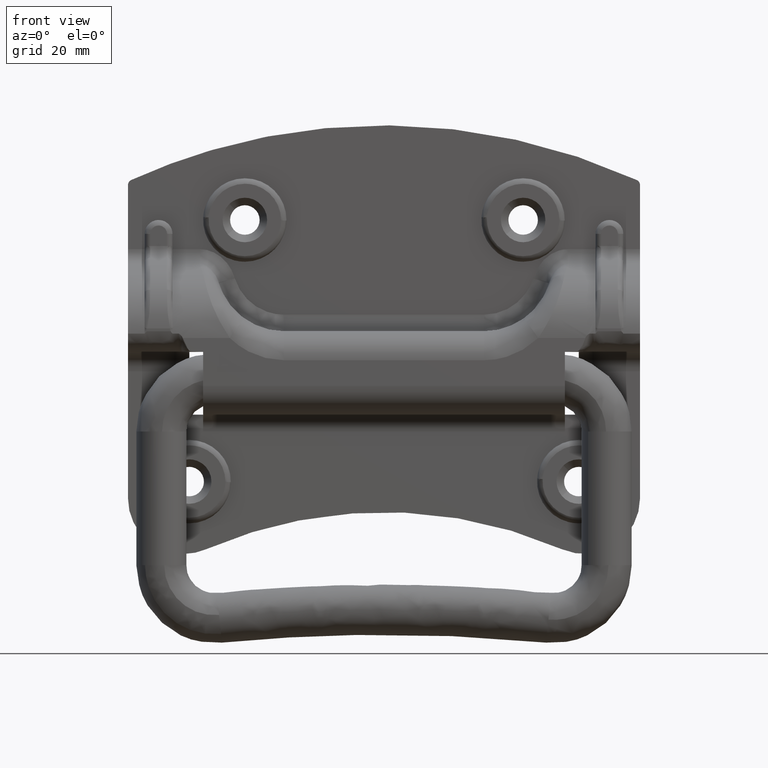
[diagram: clean part render]
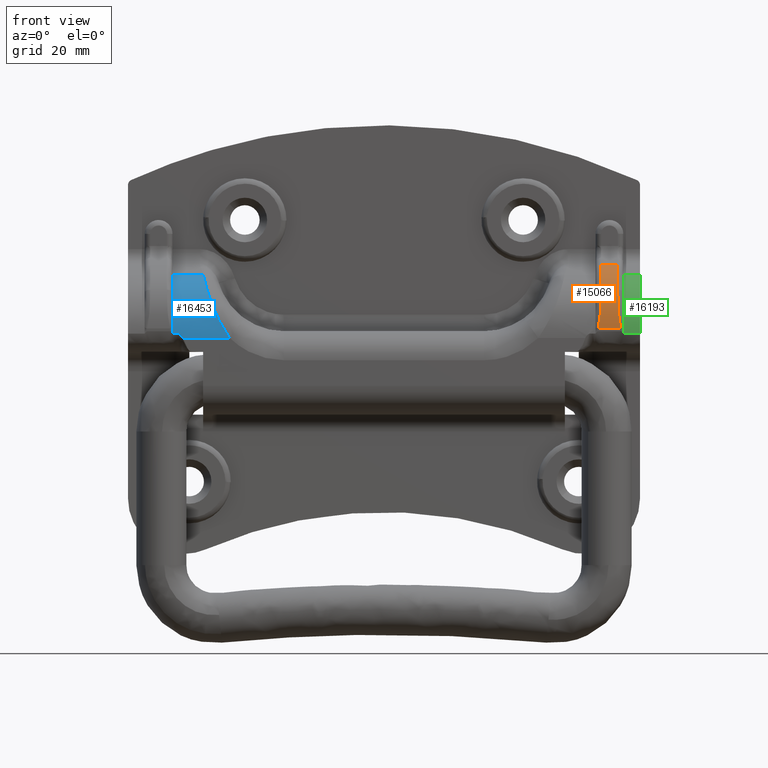
[diagram: same view with three faces highlighted in distinct colors, each labeled with its STEP entity id]
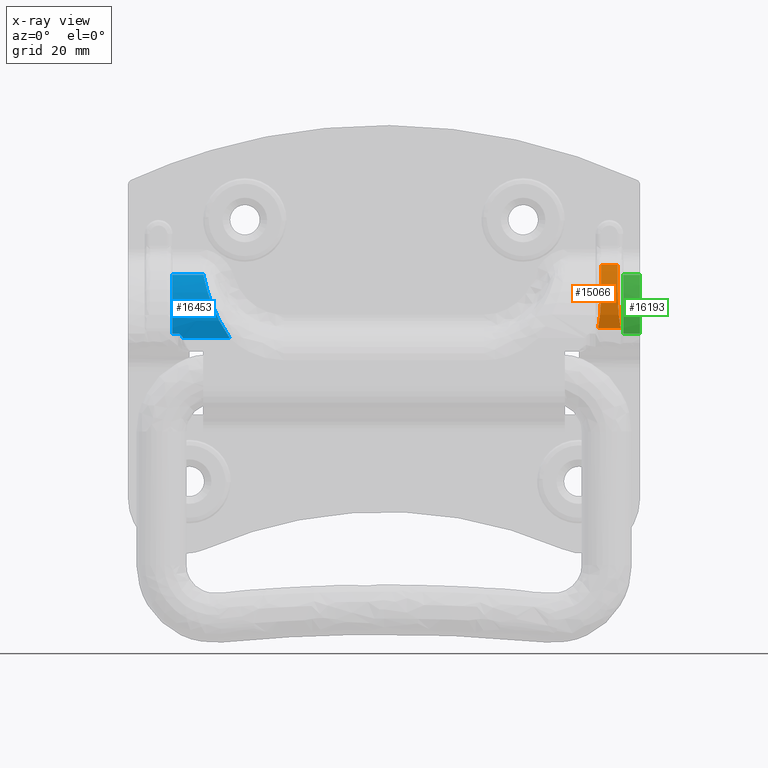
[diagram: x-ray of the same camera — body ghosted, the three highlighted faces saturated]
A machine part, front view with three faces highlighted in distinct colors.
The next image is the same camera in x-ray (body ghosted, the three faces saturated) — at least one of them is partly hidden behind the body in this view.
Their STEP definitions:

[orange] entity #15066 — the highlighted face is a freeform B-spline surface patch.
#5805=CARTESIAN_POINT('',(39.0,0.430225171060021,20.403448383051149));
#5806=VERTEX_POINT('',#5805);
#5844=CARTESIAN_POINT('',(39.0,-4.276323901076710,15.980952418736701));
#5845=VERTEX_POINT('',#5844);
#5856=CARTESIAN_POINT('',(39.0,0.430225171060021,20.403448383051149));
#5857=CARTESIAN_POINT('',(38.999999999999972,-0.314288488159473,19.993668176368629));
#5858=CARTESIAN_POINT('',(39.000000000000078,-1.468952343553884,19.201266422286292));
#5859=CARTESIAN_POINT('',(39.000000000000021,-3.045758807795529,17.696131232335400));
#5860=CARTESIAN_POINT('',(39.000000000000007,-3.857462239993519,16.641132511640219));
#5861=CARTESIAN_POINT('',(39.0,-4.276323901076710,15.980952418736701));
#5862=B_SPLINE_CURVE_WITH_KNOTS('',3,(#5856,#5857,#5858,#5859,#5860,#5861),.UNSPECIFIED.,.F.,.U.,(4,1,1,4),(0.000000012528008,2.549486902398912,4.181152243183659,6.526679813057839),.UNSPECIFIED.);
#5863=EDGE_CURVE('',#5806,#5845,#5862,.T.);
#5957=CARTESIAN_POINT('',(38.478605971033247,-6.300000000000000,9.015300000000000));
#5958=VERTEX_POINT('',#5957);
#5966=CARTESIAN_POINT('',(39.0,-4.276323901076710,15.980952418736701));
#5967=CARTESIAN_POINT('',(39.000000000000007,-4.607893594419021,15.458472092254100));
#5968=CARTESIAN_POINT('',(38.994012625306382,-4.898384695253560,14.918644573939410));
#5969=CARTESIAN_POINT('',(38.966144563768800,-5.400154437317543,13.806778612163111));
#5970=CARTESIAN_POINT('',(38.944401135558003,-5.611514559957753,13.234583813940141));
#5971=CARTESIAN_POINT('',(38.902465583903407,-5.825509652215792,12.498845911662890));
#5972=CARTESIAN_POINT('',(38.893323538750820,-5.865786867880731,12.350669355010799));
#5973=CARTESIAN_POINT('',(38.873312497469911,-5.941230165062311,12.052237315333910));
#5974=CARTESIAN_POINT('',(38.862427971717167,-5.976432131013283,11.901792753116339));
#5975=CARTESIAN_POINT('',(38.826948239830031,-6.073771659365329,11.449605966453611));
#5976=CARTESIAN_POINT('',(38.799573086825013,-6.127801176814277,11.146528084316710));
#5977=CARTESIAN_POINT('',(38.750599391539417,-6.192633809895230,10.689709594084100));
#5978=CARTESIAN_POINT('',(38.732940184244619,-6.211536274946944,10.537067478798830));
#5979=CARTESIAN_POINT('',(38.694378535665827,-6.243858226321066,10.231885161713310));
#5980=CARTESIAN_POINT('',(38.673475782526197,-6.257291889825059,10.079250411784320));
#5981=CARTESIAN_POINT('',(38.627370684307500,-6.278741060247416,9.774038484532019));
#5982=CARTESIAN_POINT('',(38.602195071725482,-6.286749137477676,9.621502489241221));
#5983=CARTESIAN_POINT('',(38.545823022484420,-6.297377340400757,9.317486844479273));
#5984=CARTESIAN_POINT('',(38.514676662237832,-6.300000000000003,9.165830803368374));
#5985=CARTESIAN_POINT('',(38.478605971033247,-6.300000000000000,9.015300000000000));
#5986=B_SPLINE_CURVE_WITH_KNOTS('',3,(#5966,#5967,#5968,#5969,#5970,#5971,#5972,#5973,#5974,#5975,#5976,#5977,#5978,#5979,#5980,#5981,#5982,#5983,#5984,#5985),.UNSPECIFIED.,.F.,.U.,(4,2,2,2,2,2,2,2,2,4),(0.0,0.249999999999999,0.499999999999997,0.562499999999997,0.624999999999997,0.749999999999998,0.812499999999999,0.874999999999999,0.937500000000000,1.0),.UNSPECIFIED.);
#5987=EDGE_CURVE('',#5845,#5958,#5986,.T.);
#6069=CARTESIAN_POINT('',(42.0,0.430225171060021,20.403448383051149));
#6070=VERTEX_POINT('',#6069);
#6113=CARTESIAN_POINT('',(42.0,-4.276323901076710,15.980952418736701));
#6114=VERTEX_POINT('',#6113);
#6136=CARTESIAN_POINT('',(42.0,-4.276323901076710,15.980952418736701));
#6137=CARTESIAN_POINT('',(42.000000000000057,-3.821050595371696,16.698550575103649));
#6138=CARTESIAN_POINT('',(42.000000000000121,-3.021517344678332,17.720989859111601));
#6139=CARTESIAN_POINT('',(41.999999999999403,-1.439843604840987,19.218902979387089));
#6140=CARTESIAN_POINT('',(42.000000000000831,-0.344090882757600,19.977297594778669));
#6141=CARTESIAN_POINT('',(42.0,0.430225171060021,20.403448383051149));
#6142=B_SPLINE_CURVE_WITH_KNOTS('',3,(#6136,#6137,#6138,#6139,#6140,#6141),.UNSPECIFIED.,.F.,.U.,(4,1,1,4),(0.000000012527669,2.549486902398936,3.875204620997911,6.526679813057847),.UNSPECIFIED.);
#6143=EDGE_CURVE('',#6114,#6070,#6142,.T.);
#6226=CARTESIAN_POINT('',(42.521394028966803,-6.300000000000000,9.015300000000000));
#6227=VERTEX_POINT('',#6226);
#6246=CARTESIAN_POINT('',(42.521394028966803,-6.300000000000000,9.015300000000000));
#6247=CARTESIAN_POINT('',(42.485320224847207,-6.300000000000002,9.165843794236613));
#6248=CARTESIAN_POINT('',(42.454171581058219,-6.297376886950559,9.317513001943949));
#6249=CARTESIAN_POINT('',(42.397795730078663,-6.286746839153366,9.621555041810437));
#6250=CARTESIAN_POINT('',(42.372618617771330,-6.278737367673204,9.774104323215893));
#6251=CARTESIAN_POINT('',(42.326511042453809,-6.257284475483322,10.079342612570930));
#6252=CARTESIAN_POINT('',(42.305607301962517,-6.243848480685903,10.231990532211690));
#6253=CARTESIAN_POINT('',(42.267044027817498,-6.211520914909700,10.537199144482869));
#6254=CARTESIAN_POINT('',(42.249384184400853,-6.192615161215256,10.689854399365389));
#6255=CARTESIAN_POINT('',(42.200409045342489,-6.127771330288906,11.146711556772640));
#6256=CARTESIAN_POINT('',(42.173033460901692,-6.073732486651917,11.449814929751691));
#6257=CARTESIAN_POINT('',(42.137553621829511,-5.976376110129258,11.902039486077131));
#6258=CARTESIAN_POINT('',(42.126669165792507,-5.941168005449564,12.052496557445840));
#6259=CARTESIAN_POINT('',(42.106658820160192,-5.865713375537659,12.350946689083910));
#6260=CARTESIAN_POINT('',(42.097517322825482,-5.825430755771898,12.499129820558780));
#6261=CARTESIAN_POINT('',(42.055585121569059,-5.611411071155761,13.234888939345000));
#6262=CARTESIAN_POINT('',(42.033846142120012,-5.400039060802506,13.807063625513541));
#6263=CARTESIAN_POINT('',(42.005984908226530,-4.898288298384833,14.918828814471100));
#6264=CARTESIAN_POINT('',(42.000000000000007,-4.607921110633572,15.458428732800410));
#6265=CARTESIAN_POINT('',(42.0,-4.276323901076710,15.980952418736701));
#6266=B_SPLINE_CURVE_WITH_KNOTS('',3,(#6246,#6247,#6248,#6249,#6250,#6251,#6252,#6253,#6254,#6255,#6256,#6257,#6258,#6259,#6260,#6261,#6262,#6263,#6264,#6265),.UNSPECIFIED.,.F.,.U.,(4,2,2,2,2,2,2,2,2,4),(0.0,0.062500000000000,0.124999999999999,0.187499999999999,0.249999999999999,0.374999999999998,0.437499999999998,0.499999999999998,0.749999999999999,1.0),.UNSPECIFIED.);
#6267=EDGE_CURVE('',#6227,#6114,#6266,.T.);
#15036=CARTESIAN_POINT('',(42.622463730415127,0.899428429572494,20.649446700826321));
#15037=CARTESIAN_POINT('',(38.375009527048697,0.899428429572494,20.649446700826321));
#15038=CARTESIAN_POINT('',(42.622463730415141,-6.714769278768177,16.853147763365087));
#15039=CARTESIAN_POINT('',(38.375009527048697,-6.714769278768177,16.853147763365087));
#15040=CARTESIAN_POINT('',(42.622463730415127,-6.283270368841176,8.355989352755014));
#15041=CARTESIAN_POINT('',(38.375009527048704,-6.283270368841176,8.355989352755014));
#15049=(BOUNDED_SURFACE()B_SPLINE_SURFACE(1,2,((#15036,#15038,#15040),(#15037,#15039,#15041)),.UNSPECIFIED.,.F.,.F.,.U.)B_SPLINE_SURFACE_WITH_KNOTS((2,2),(3,3),(0.0,4.247454203366438),(0.0,15.503547872285020),.UNSPECIFIED.)GEOMETRIC_REPRESENTATION_ITEM()RATIONAL_B_SPLINE_SURFACE(((1.0,0.833269797135400,0.991745090738385),(1.0,0.833269797135400,0.991745090738385)))REPRESENTATION_ITEM('')SURFACE());
#15050=CARTESIAN_POINT('',(42.0,0.430225171060021,20.403448383051149));
#15051=CARTESIAN_POINT('',(39.0,0.430225171060021,20.403448383051149));
#15052=QUASI_UNIFORM_CURVE('',1,(#15050,#15051),.UNSPECIFIED.,.F.,.U.);
#15053=EDGE_CURVE('',#6070,#5806,#15052,.T.);
#15054=ORIENTED_EDGE('',*,*,#15053,.T.);
#15055=ORIENTED_EDGE('',*,*,#5863,.T.);
#15056=ORIENTED_EDGE('',*,*,#5987,.T.);
#15057=CARTESIAN_POINT('',(42.521394028966803,-6.300000000000000,9.015300000000000));
#15058=CARTESIAN_POINT('',(38.478605971033247,-6.300000000000000,9.015300000000000));
#15059=QUASI_UNIFORM_CURVE('',1,(#15057,#15058),.UNSPECIFIED.,.F.,.U.);
#15060=EDGE_CURVE('',#6227,#5958,#15059,.T.);
#15061=ORIENTED_EDGE('',*,*,#15060,.F.);
#15062=ORIENTED_EDGE('',*,*,#6267,.T.);
#15063=ORIENTED_EDGE('',*,*,#6143,.T.);
#15064=EDGE_LOOP('',(#15054,#15055,#15056,#15061,#15062,#15063));
#15065=FACE_OUTER_BOUND('',#15064,.T.);
#15066=ADVANCED_FACE('',(#15065),#15049,.T.);

[blue] entity #16453 — the highlighted face is a freeform B-spline surface patch.
#6385=CARTESIAN_POINT('',(-38.000500000000002,-3.431991293301565,15.445133001910801));
#6386=VERTEX_POINT('',#6385);
#6497=CARTESIAN_POINT('',(-38.000500000000002,-6.169195138090450,9.139542248898760));
#6498=VERTEX_POINT('',#6497);
#6506=CARTESIAN_POINT('',(-38.000500000000002,-3.431991293301565,15.445133001910801));
#6507=CARTESIAN_POINT('',(-38.000500000000017,-4.135993647246877,14.569858003005169));
#6508=CARTESIAN_POINT('',(-38.000499999999889,-5.352826641061151,12.572994682824911));
#6509=CARTESIAN_POINT('',(-38.000500000000073,-6.000415462016676,10.323290169332219));
#6510=CARTESIAN_POINT('',(-38.000500000000002,-6.169195138090450,9.139542248898760));
#6511=B_SPLINE_CURVE_WITH_KNOTS('',3,(#6506,#6507,#6508,#6509,#6510),.UNSPECIFIED.,.F.,.U.,(4,1,4),(0.000000015262824,3.369718155369479,6.956797109650921),.UNSPECIFIED.);
#6512=EDGE_CURVE('',#6386,#6498,#6511,.T.);
#6555=CARTESIAN_POINT('',(-38.000500000000002,-6.276409067895870,8.082847311534970));
#6556=VERTEX_POINT('',#6555);
#6564=CARTESIAN_POINT('',(-38.000500000000002,-6.169195138090450,9.139542248898760));
#6565=CARTESIAN_POINT('',(-38.000500000000088,-6.219308831396393,8.788967239565183));
#6566=CARTESIAN_POINT('',(-38.000500000000002,-6.255085300615239,8.436342950204450));
#6567=CARTESIAN_POINT('',(-38.000500000000002,-6.276409067895870,8.082847311534970));
#6568=B_SPLINE_CURVE_WITH_KNOTS('',3,(#6564,#6565,#6566,#6567),.UNSPECIFIED.,.F.,.U.,(4,4),(3.771793E-010,1.062420307766541),.UNSPECIFIED.);
#6569=EDGE_CURVE('',#6498,#6556,#6568,.T.);
#11377=CARTESIAN_POINT('',(-36.125791755031699,-6.300000000000100,7.300026960092620));
#11378=VERTEX_POINT('',#11377);
#11379=CARTESIAN_POINT('',(-38.000500000000002,-6.276409067895870,8.082847311534970));
#11380=CARTESIAN_POINT('',(-37.815462533204219,-6.276409067895871,8.082847311534971));
#11381=CARTESIAN_POINT('',(-37.537906333010518,-6.276409067895878,8.082847311534986));
#11382=CARTESIAN_POINT('',(-37.214090766117899,-6.276409067895872,8.082847311534980));
#11383=CARTESIAN_POINT('',(-37.075312666021027,-6.276409067895873,8.082847311534991));
#11384=CARTESIAN_POINT('',(-37.017488457647332,-6.276409067895873,8.082847311534987));
#11385=CARTESIAN_POINT('',(-37.005920785503221,-6.276400904065618,8.082982649177154));
#11386=CARTESIAN_POINT('',(-36.982798812474037,-6.276423142942070,8.082613983638417));
#11387=CARTESIAN_POINT('',(-36.971248679156837,-6.276465591743411,8.081910711588897));
#11388=CARTESIAN_POINT('',(-36.936629687229768,-6.276682869747438,8.078299095157837));
#11389=CARTESIAN_POINT('',(-36.913435272918498,-6.276952042748405,8.073817935285705));
#11390=CARTESIAN_POINT('',(-36.846538828204110,-6.278026707024198,8.055652504990734));
#11391=CARTESIAN_POINT('',(-36.804626332876552,-6.279092271090159,8.037362262439345));
#11392=CARTESIAN_POINT('',(-36.724296832807582,-6.281550853705474,7.992729610742754));
#11393=CARTESIAN_POINT('',(-36.685802938138259,-6.282951943265394,7.966187630294547));
#11394=CARTESIAN_POINT('',(-36.577439149234003,-6.287143422563873,7.880845796273713));
#11395=CARTESIAN_POINT('',(-36.512844460966647,-6.289951481506733,7.815725293828688));
#11396=CARTESIAN_POINT('',(-36.391071357713940,-6.294703569679060,7.677470200179685));
#11397=CARTESIAN_POINT('',(-36.334409314579503,-6.296649983186968,7.604483037109052));
#11398=CARTESIAN_POINT('',(-36.226497758935572,-6.299294400757909,7.454782802406195));
#11399=CARTESIAN_POINT('',(-36.175540868139599,-6.300000000000090,7.378031743140282));
#11400=CARTESIAN_POINT('',(-36.125791755031699,-6.300000000000090,7.300026960092620));
#11401=B_SPLINE_CURVE_WITH_KNOTS('',3,(#11379,#11380,#11381,#11382,#11383,#11384,#11385,#11386,#11387,#11388,#11389,#11390,#11391,#11392,#11393,#11394,#11395,#11396,#11397,#11398,#11399,#11400),.UNSPECIFIED.,.F.,.U.,(4,1,1,2,2,2,2,2,2,2,2,4),(0.0,0.249999999999961,0.374999999999941,0.437499999999931,0.453124999999936,0.468749999999940,0.499999999999950,0.562499999999959,0.624999999999968,0.749999999999978,0.874999999999989,1.0),.UNSPECIFIED.);
#11402=EDGE_CURVE('',#6556,#11378,#11401,.T.);
#13325=CARTESIAN_POINT('',(-32.459108325481402,0.394853249421875,18.668629532690350));
#13326=VERTEX_POINT('',#13325);
#13430=CARTESIAN_POINT('',(-27.725849927607999,-6.299715658165910,7.300026839039960));
#13431=VERTEX_POINT('',#13430);
#13469=CARTESIAN_POINT('',(-27.725849927607999,-6.299715658165910,7.300026839039960));
#13470=CARTESIAN_POINT('',(-27.836134869247690,-6.298000868644026,7.461327612783106));
#13471=CARTESIAN_POINT('',(-28.056187961208060,-6.294578314744935,7.783174508434153));
#13472=CARTESIAN_POINT('',(-28.372141576105118,-6.266175598717850,8.273133577659218));
#13473=CARTESIAN_POINT('',(-28.676645531503478,-6.220077389079586,8.765886094810387));
#13474=CARTESIAN_POINT('',(-28.968749445556671,-6.154207337286557,9.261295753227172));
#13475=CARTESIAN_POINT('',(-29.248702271433370,-6.068555249054843,9.758386417889897));
#13476=CARTESIAN_POINT('',(-29.516437216439169,-5.962597576909018,10.256363046319160));
#13477=CARTESIAN_POINT('',(-29.771971658766930,-5.835988151347757,10.754334923080419));
#13478=CARTESIAN_POINT('',(-30.015300563829779,-5.688377549806856,11.251390344772910));
#13479=CARTESIAN_POINT('',(-30.246424906832921,-5.519464601329257,11.746578034987550));
#13480=CARTESIAN_POINT('',(-30.465344133832499,-5.328986701683269,12.238912913612950));
#13481=CARTESIAN_POINT('',(-30.672058017548270,-5.116723839369671,12.727378404045860));
#13482=CARTESIAN_POINT('',(-30.866566769009239,-4.882508818404707,13.210919438314329));
#13483=CARTESIAN_POINT('',(-31.048868753028369,-4.626199018717251,13.688477278757370));
#13484=CARTESIAN_POINT('',(-31.331107259228510,-4.164260628175875,14.468968711315760));
#13485=CARTESIAN_POINT('',(-31.676711123720221,-3.398454780766573,15.546462337238459));
#13486=CARTESIAN_POINT('',(-31.951194315245740,-2.463272467577314,16.550068718863621));
#13487=CARTESIAN_POINT('',(-32.124727471559908,-1.667475527776770,17.257630058343690));
#13488=CARTESIAN_POINT('',(-32.234756940905257,-1.078622379338144,17.725441598716969));
#13489=CARTESIAN_POINT('',(-32.348306804724189,-0.388503483207469,18.212754556438480));
#13490=CARTESIAN_POINT('',(-32.420935228535917,0.124972905783949,18.511572485597860));
#13491=CARTESIAN_POINT('',(-32.459108325481402,0.394853249421875,18.668629532690350));
#13492=B_SPLINE_CURVE_WITH_KNOTS('',3,(#13469,#13470,#13471,#13472,#13473,#13474,#13475,#13476,#13477,#13478,#13479,#13480,#13481,#13482,#13483,#13484,#13485,#13486,#13487,#13488,#13489,#13490,#13491),.UNSPECIFIED.,.F.,.U.,(4,1,1,1,1,1,1,1,1,1,1,1,1,1,1,1,1,1,1,1,4),(0.000005090878453,0.039633687066501,0.079076792015589,0.118348271606189,0.157467332067503,0.196453404858623,0.235326120834441,0.274105282964872,0.312810837778509,0.351462845723009,0.390081450653386,0.428686848674708,0.467299256577319,0.505938880110009,0.544625882339582,0.659905983523113,0.782130580348902,0.827296212294047,0.878657093143738,0.936222840811206,1.0),.UNSPECIFIED.);
#13493=EDGE_CURVE('',#13431,#13326,#13492,.T.);
#14853=CARTESIAN_POINT('',(-38.000500000000002,0.394853249421875,18.668629532690350));
#14854=VERTEX_POINT('',#14853);
#14855=CARTESIAN_POINT('',(-38.000500000000002,0.394853249421875,18.668629532690350));
#14856=CARTESIAN_POINT('',(-38.000500000000102,-0.293182835458383,18.287134719643650));
#14857=CARTESIAN_POINT('',(-38.000499999999867,-1.686685183677037,17.339398250333812));
#14858=CARTESIAN_POINT('',(-38.000500000000102,-2.873464369274989,16.140142006019001));
#14859=CARTESIAN_POINT('',(-38.000500000000002,-3.431991293301565,15.445133001910801));
#14860=B_SPLINE_CURVE_WITH_KNOTS('',3,(#14855,#14856,#14857,#14858,#14859),.UNSPECIFIED.,.F.,.U.,(4,1,4),(6.755390E-009,2.360165592271757,5.035007237517141),.UNSPECIFIED.);
#14861=EDGE_CURVE('',#14854,#6386,#14860,.T.);
#16218=CARTESIAN_POINT('',(-32.459108325481402,0.394853249421875,18.668629532690350));
#16219=CARTESIAN_POINT('',(-38.000500000000002,0.394853249421875,18.668629532690350));
#16220=QUASI_UNIFORM_CURVE('',1,(#16218,#16219),.UNSPECIFIED.,.F.,.U.);
#16221=EDGE_CURVE('',#13326,#14854,#16220,.T.);
#16426=CARTESIAN_POINT('',(-27.468983675798199,0.697267920567101,18.831167735512381));
#16427=CARTESIAN_POINT('',(-38.263787908105037,0.697267920567101,18.831167735512381));
#16428=CARTESIAN_POINT('',(-27.468983675798192,-6.706361049568539,14.977082351524563));
#16429=CARTESIAN_POINT('',(-38.263787908105044,-6.706361049568539,14.977082351524563));
#16430=CARTESIAN_POINT('',(-27.468983675798196,-6.283289528366574,6.641093714149386));
#16431=CARTESIAN_POINT('',(-38.263787908105044,-6.283289528366574,6.641093714149386));
#16439=(BOUNDED_SURFACE()B_SPLINE_SURFACE(1,2,((#16426,#16428,#16430),(#16427,#16429,#16431)),.UNSPECIFIED.,.F.,.F.,.U.)B_SPLINE_SURFACE_WITH_KNOTS((2,2),(3,3),(0.0,10.794804232306850),(0.0,15.256398580736480),.UNSPECIFIED.)GEOMETRIC_REPRESENTATION_ITEM()RATIONAL_B_SPLINE_SURFACE(((1.0,0.838056701951296,0.991867689409706),(1.0,0.838056701951296,0.991867689409706)))REPRESENTATION_ITEM('')SURFACE());
#16440=ORIENTED_EDGE('',*,*,#14861,.T.);
#16441=ORIENTED_EDGE('',*,*,#6512,.T.);
#16442=ORIENTED_EDGE('',*,*,#6569,.T.);
#16443=ORIENTED_EDGE('',*,*,#11402,.T.);
#16444=CARTESIAN_POINT('',(-27.725849927607999,-6.299715658165910,7.300026839039960));
#16445=CARTESIAN_POINT('',(-36.125791755031699,-6.300000000000100,7.300026960092620));
#16446=QUASI_UNIFORM_CURVE('',1,(#16444,#16445),.UNSPECIFIED.,.F.,.U.);
#16447=EDGE_CURVE('',#13431,#11378,#16446,.T.);
#16448=ORIENTED_EDGE('',*,*,#16447,.F.);
#16449=ORIENTED_EDGE('',*,*,#13493,.T.);
#16450=ORIENTED_EDGE('',*,*,#16221,.T.);
#16451=EDGE_LOOP('',(#16440,#16441,#16442,#16443,#16448,#16449,#16450));
#16452=FACE_OUTER_BOUND('',#16451,.T.);
#16453=ADVANCED_FACE('',(#16452),#16439,.T.);

[green] entity #16193 — the highlighted face is a freeform B-spline surface patch.
#6115=CARTESIAN_POINT('',(43.0,-3.431991293301580,15.445133001910801));
#6116=VERTEX_POINT('',#6115);
#6228=CARTESIAN_POINT('',(43.0,-6.169195138090450,9.139542248898760));
#6229=VERTEX_POINT('',#6228);
#6237=CARTESIAN_POINT('',(43.0,-3.431991293301580,15.445133001910801));
#6238=CARTESIAN_POINT('',(43.000000000000149,-4.136064988653970,14.569900507328549));
#6239=CARTESIAN_POINT('',(42.999999999999623,-5.352698753086410,12.572921214528900));
#6240=CARTESIAN_POINT('',(43.000000000000291,-6.000480986195848,10.323322032388861));
#6241=CARTESIAN_POINT('',(43.0,-6.169195138090450,9.139542248898760));
#6242=B_SPLINE_CURVE_WITH_KNOTS('',3,(#6237,#6238,#6239,#6240,#6241),.UNSPECIFIED.,.F.,.U.,(4,1,4),(0.000000015263004,3.369718155369597,6.956797109650912),.UNSPECIFIED.);
#6243=EDGE_CURVE('',#6116,#6229,#6242,.T.);
#6286=CARTESIAN_POINT('',(43.0,-6.276409067895880,8.082847311534891));
#6287=VERTEX_POINT('',#6286);
#6295=CARTESIAN_POINT('',(43.0,-6.169195138090450,9.139542248898760));
#6296=CARTESIAN_POINT('',(43.000000000000028,-6.219309025732250,8.788969769016566));
#6297=CARTESIAN_POINT('',(43.000000000000007,-6.255085283167703,8.436341866036903));
#6298=CARTESIAN_POINT('',(43.0,-6.276409067895880,8.082847311534891));
#6299=B_SPLINE_CURVE_WITH_KNOTS('',3,(#6295,#6296,#6297,#6298),.UNSPECIFIED.,.F.,.U.,(4,4),(3.772008E-010,1.062420307766619),.UNSPECIFIED.);
#6300=EDGE_CURVE('',#6229,#6287,#6299,.T.);
#11316=CARTESIAN_POINT('',(46.0,-6.276409067895880,8.082847311534870));
#11317=VERTEX_POINT('',#11316);
#11330=CARTESIAN_POINT('',(43.0,-6.276409067895880,8.082847311534891));
#11331=CARTESIAN_POINT('',(46.0,-6.276409067895880,8.082847311534870));
#11332=QUASI_UNIFORM_CURVE('',1,(#11330,#11331),.UNSPECIFIED.,.F.,.U.);
#11333=EDGE_CURVE('',#6287,#11317,#11332,.T.);
#15121=CARTESIAN_POINT('',(43.0,0.394853249421875,18.668629532690350));
#15122=VERTEX_POINT('',#15121);
#15123=CARTESIAN_POINT('',(43.0,0.394853249421875,18.668629532690350));
#15124=CARTESIAN_POINT('',(42.999999999999950,-0.293180181787873,18.287130780674591));
#15125=CARTESIAN_POINT('',(43.000000000000128,-1.686697804362204,17.339414395222800));
#15126=CARTESIAN_POINT('',(42.999999999999943,-2.873452996738158,16.140128841856981));
#15127=CARTESIAN_POINT('',(43.0,-3.431991293301580,15.445133001910801));
#15128=B_SPLINE_CURVE_WITH_KNOTS('',3,(#15123,#15124,#15125,#15126,#15127),.UNSPECIFIED.,.F.,.U.,(4,1,4),(6.754860E-009,2.360165592271580,5.035007237517155),.UNSPECIFIED.);
#15129=EDGE_CURVE('',#15122,#6116,#15128,.T.);
#16155=CARTESIAN_POINT('',(46.075000000000003,0.494301844006768,18.723218738081091));
#16156=CARTESIAN_POINT('',(42.923124999999999,0.494301844006768,18.723218738081091));
#16157=CARTESIAN_POINT('',(46.075000000000003,-6.205976106241629,15.083263870071352));
#16158=CARTESIAN_POINT('',(42.923125000000006,-6.205976106241629,15.083263870071352));
#16159=CARTESIAN_POINT('',(46.074999999999996,-6.299031902758704,7.458676230699157));
#16160=CARTESIAN_POINT('',(42.923124999999999,-6.299031902758704,7.458676230699157));
#16168=(BOUNDED_SURFACE()B_SPLINE_SURFACE(1,2,((#16155,#16157,#16159),(#16156,#16158,#16160)),.UNSPECIFIED.,.F.,.F.,.U.)B_SPLINE_SURFACE_WITH_KNOTS((2,2),(3,3),(0.0,3.151875000000004),(0.0,14.125051832108600),.UNSPECIFIED.)GEOMETRIC_REPRESENTATION_ITEM()RATIONAL_B_SPLINE_SURFACE(((1.0,0.862134369481604,0.998993271081157),(1.0,0.862134369481604,0.998993271081157)))REPRESENTATION_ITEM('')SURFACE());
#16169=ORIENTED_EDGE('',*,*,#15129,.T.);
#16170=ORIENTED_EDGE('',*,*,#6243,.T.);
#16171=ORIENTED_EDGE('',*,*,#6300,.T.);
#16172=ORIENTED_EDGE('',*,*,#11333,.T.);
#16173=CARTESIAN_POINT('',(46.0,0.394853249421875,18.668629532690350));
#16174=VERTEX_POINT('',#16173);
#16175=CARTESIAN_POINT('',(46.0,0.394853249421875,18.668629532690350));
#16176=CARTESIAN_POINT('',(46.000000000000021,-0.526872088210278,18.157683621325550));
#16177=CARTESIAN_POINT('',(45.999999999999993,-2.189490226159029,16.950199881862059));
#16178=CARTESIAN_POINT('',(45.999999999999901,-3.946244666652603,14.895878838500121));
#16179=CARTESIAN_POINT('',(46.000000000000199,-4.994755174112898,13.060710082810081));
#16180=CARTESIAN_POINT('',(45.999999999999822,-5.874522718528690,10.919205759185219));
#16181=CARTESIAN_POINT('',(45.999999999999922,-6.205236501782624,9.270617464898887));
#16182=CARTESIAN_POINT('',(46.0,-6.276409067895880,8.082847311534870));
#16183=B_SPLINE_CURVE_WITH_KNOTS('',3,(#16175,#16176,#16177,#16178,#16179,#16180,#16181,#16182),.UNSPECIFIED.,.F.,.U.,(4,1,1,1,1,4),(0.000000053193808,3.161564354946869,6.119181053930365,8.056874588356276,9.484691904779478,13.054202514639741),.UNSPECIFIED.);
#16184=EDGE_CURVE('',#16174,#11317,#16183,.T.);
#16185=ORIENTED_EDGE('',*,*,#16184,.F.);
#16186=CARTESIAN_POINT('',(46.0,0.394853249421875,18.668629532690350));
#16187=CARTESIAN_POINT('',(43.0,0.394853249421875,18.668629532690350));
#16188=QUASI_UNIFORM_CURVE('',1,(#16186,#16187),.UNSPECIFIED.,.F.,.U.);
#16189=EDGE_CURVE('',#16174,#15122,#16188,.T.);
#16190=ORIENTED_EDGE('',*,*,#16189,.T.);
#16191=EDGE_LOOP('',(#16169,#16170,#16171,#16172,#16185,#16190));
#16192=FACE_OUTER_BOUND('',#16191,.T.);
#16193=ADVANCED_FACE('',(#16192),#16168,.T.);